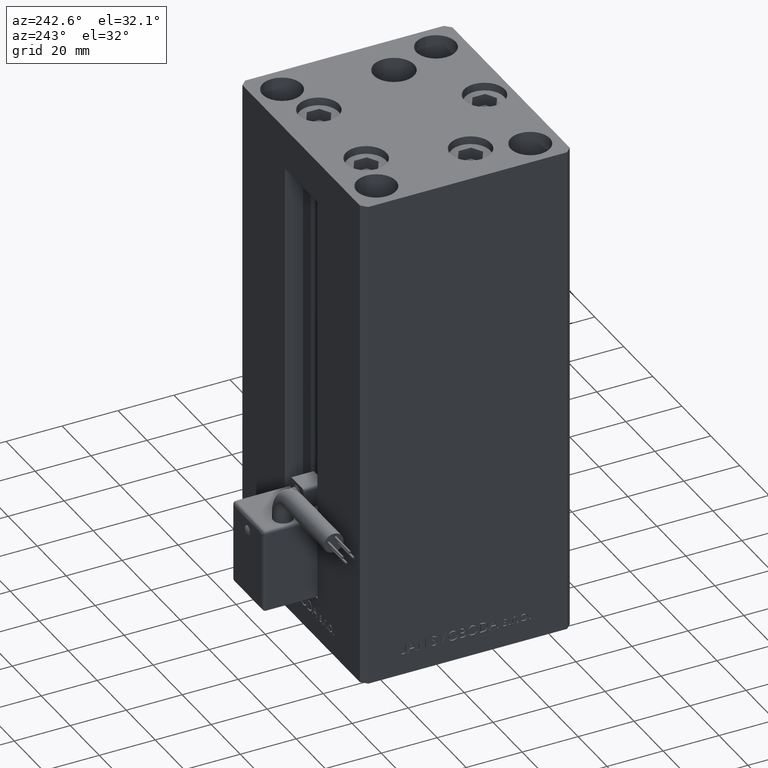
[diagram: clean part render]
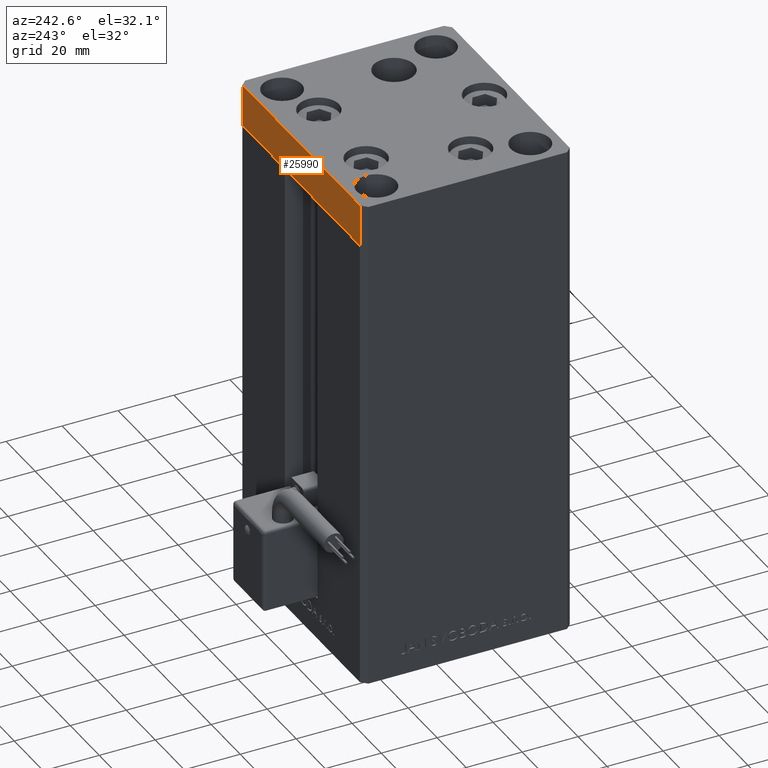
[diagram: same view with one face highlighted and labeled with its STEP entity id]
A machine part, auxiliary view. The second image highlights one B-rep face of the part: STEP entity #25990.
In plain terms, the highlighted planar face has unit normal (-0, 1, 0).
Its self-contained STEP definition (entity closure, byte-faithful):
#1889 = CARTESIAN_POINT ( 'NONE',  ( 40.49999999999991473, 37.50000000000000711, 0.000000000000000000 ) ) ;
#2581 = VERTEX_POINT ( 'NONE', #24617 ) ;
#4140 = DIRECTION ( 'NONE',  ( 0.000000000000000000, 0.000000000000000000, 1.000000000000000000 ) ) ;
#4373 = DIRECTION ( 'NONE',  ( -1.000000000000000000, -3.426614273534436165E-16, 0.000000000000000000 ) ) ;
#4406 = CARTESIAN_POINT ( 'NONE',  ( -40.50000000000000711, 37.49999999999997868, -15.00000000000000000 ) ) ;
#5760 = ORIENTED_EDGE ( 'NONE', *, *, #14615, .F. ) ;
#7585 = LINE ( 'NONE', #4406, #22795 ) ;
#8847 = CARTESIAN_POINT ( 'NONE',  ( 40.49999999999991473, 37.50000000000000711, 0.000000000000000000 ) ) ;
#9164 = CARTESIAN_POINT ( 'NONE',  ( 40.49999999999991473, 37.50000000000000711, -15.00000000000000000 ) ) ;
#11504 = EDGE_CURVE ( 'NONE', #44688, #33994, #7585, .T. ) ;
#11653 = CARTESIAN_POINT ( 'NONE',  ( 40.49999999999991473, 37.50000000000000711, -15.00000000000000000 ) ) ;
#12059 = CARTESIAN_POINT ( 'NONE',  ( -40.50000000000000711, 37.49999999999997868, -15.00000000000000000 ) ) ;
#13397 = LINE ( 'NONE', #9164, #40985 ) ;
#14615 = EDGE_CURVE ( 'NONE', #2581, #30441, #51523, .T. ) ;
#15401 = DIRECTION ( 'NONE',  ( -3.426614273534436165E-16, 1.000000000000000000, 0.000000000000000000 ) ) ;
#17659 = VECTOR ( 'NONE', #4373, 1000.000000000000000 ) ;
#18714 = EDGE_CURVE ( 'NONE', #2581, #44688, #13397, .T. ) ;
#21246 = LINE ( 'NONE', #8847, #17659 ) ;
#22584 = AXIS2_PLACEMENT_3D ( 'NONE', #31227, #15401, #38901 ) ;
#22795 = VECTOR ( 'NONE', #4140, 1000.000000000000000 ) ;
#24040 = DIRECTION ( 'NONE',  ( 0.000000000000000000, 0.000000000000000000, 1.000000000000000000 ) ) ;
#24617 = CARTESIAN_POINT ( 'NONE',  ( 40.49999999999991473, 37.50000000000000711, -15.00000000000000000 ) ) ;
#25822 = ORIENTED_EDGE ( 'NONE', *, *, #28252, .F. ) ;
#25990 = ADVANCED_FACE ( 'NONE', ( #35183 ), #42335, .T. ) ;
#28252 = EDGE_CURVE ( 'NONE', #30441, #33994, #21246, .T. ) ;
#30441 = VERTEX_POINT ( 'NONE', #1889 ) ;
#31227 = CARTESIAN_POINT ( 'NONE',  ( 40.49999999999991473, 37.50000000000000711, -15.00000000000000000 ) ) ;
#32052 = CARTESIAN_POINT ( 'NONE',  ( -40.50000000000000711, 37.49999999999997868, 0.000000000000000000 ) ) ;
#33994 = VERTEX_POINT ( 'NONE', #32052 ) ;
#35183 = FACE_OUTER_BOUND ( 'NONE', #45896, .T. ) ;
#38315 = VECTOR ( 'NONE', #24040, 1000.000000000000000 ) ;
#38901 = DIRECTION ( 'NONE',  ( -1.000000000000000000, -3.426614273534436165E-16, 0.000000000000000000 ) ) ;
#40985 = VECTOR ( 'NONE', #50347, 1000.000000000000000 ) ;
#42335 = PLANE ( 'NONE',  #22584 ) ;
#44688 = VERTEX_POINT ( 'NONE', #12059 ) ;
#45896 = EDGE_LOOP ( 'NONE', ( #25822, #5760, #47467, #51875 ) ) ;
#47467 = ORIENTED_EDGE ( 'NONE', *, *, #18714, .T. ) ;
#50347 = DIRECTION ( 'NONE',  ( -1.000000000000000000, -3.426614273534436165E-16, 0.000000000000000000 ) ) ;
#51523 = LINE ( 'NONE', #11653, #38315 ) ;
#51875 = ORIENTED_EDGE ( 'NONE', *, *, #11504, .T. ) ;